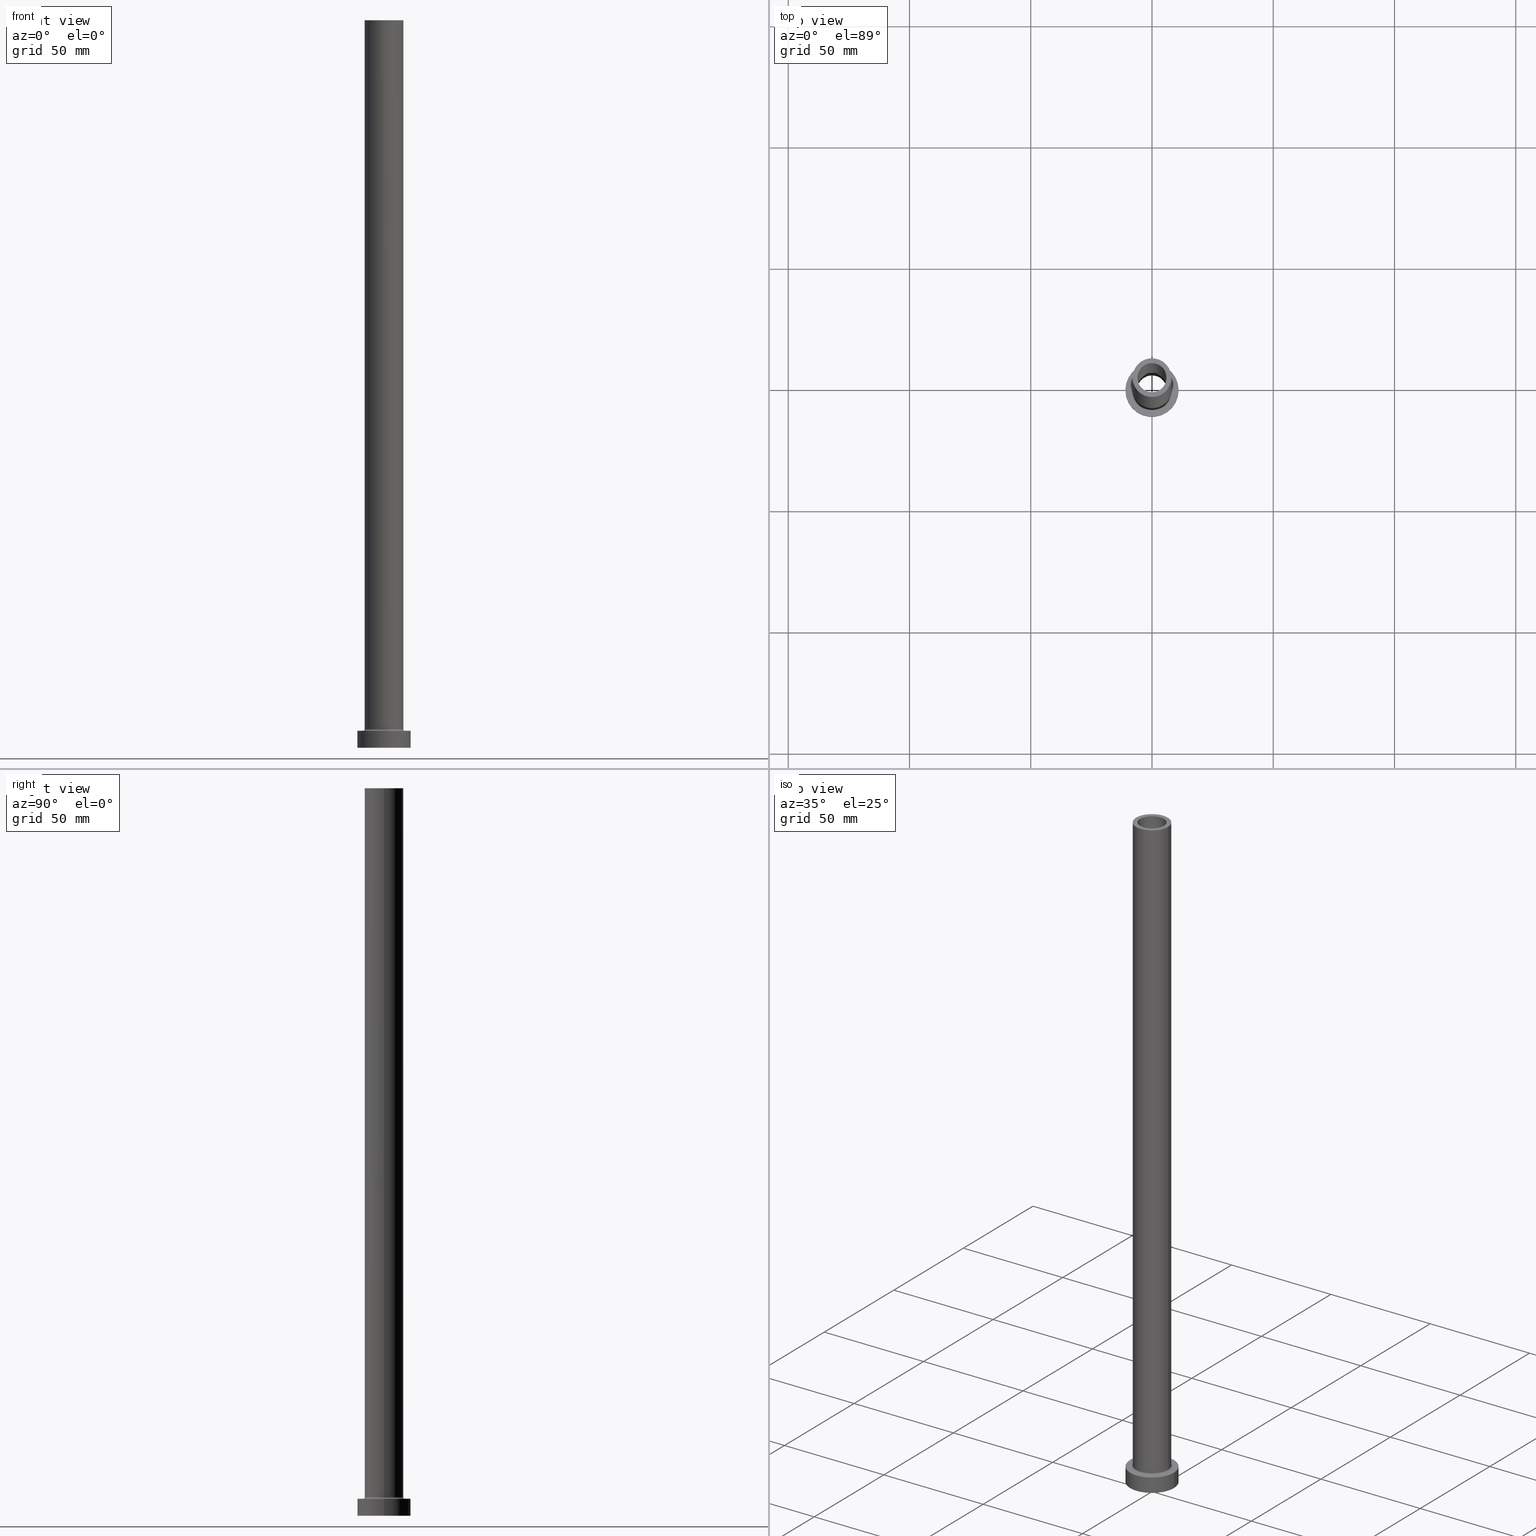
[diagram: canonical four-view strip — front | top / right | iso, engineering-drawing reading convention]
A machine part, canonical four-view strip (front | top / right | iso — engineering-drawing reading convention). The complete STEP part file that produces these views, byte-faithful:
ISO-10303-21;
HEADER;
FILE_DESCRIPTION (( 'STEP AP203' ),
    '1' );
FILE_NAME ('0f9c.STEP',
    '2023-02-13T09:06:59',
    ( '' ),
    ( '' ),
    'SwSTEP 2.0',
    'SolidWorks 2019',
    '' );
FILE_SCHEMA (( 'CONFIG_CONTROL_DESIGN' ));
ENDSEC;

DATA;
#1 = LOCAL_TIME ( 10, 6, 59.00000000000000000, #58 ) ;
#2 = ORIENTED_EDGE ( 'NONE', *, *, #116, .T. ) ;
#3 = ORIENTED_EDGE ( 'NONE', *, *, #28, .F. ) ;
#4 = DIRECTION ( 'NONE',  ( -0.000000000000000000, -0.000000000000000000, -1.000000000000000000 ) ) ;
#5 = DIRECTION ( 'NONE',  ( 0.000000000000000000, 0.000000000000000000, -1.000000000000000000 ) ) ;
#6 = CIRCLE ( 'NONE', #287, 0.6999999999999992895 ) ;
#7 = ORIENTED_EDGE ( 'NONE', *, *, #428, .T. ) ;
#8 = EDGE_CURVE ( 'NONE', #51, #122, #99, .T. ) ;
#9 = CARTESIAN_POINT ( 'NONE',  ( 0.000000000000000000, 0.000000000000000000, 300.0000000000000000 ) ) ;
#10 = DIRECTION ( 'NONE',  ( 0.000000000000000000, 0.000000000000000000, 1.000000000000000000 ) ) ;
#11 = DIRECTION ( 'NONE',  ( 0.000000000000000000, 0.000000000000000000, -1.000000000000000000 ) ) ;
#12 = CARTESIAN_POINT ( 'NONE',  ( 0.000000000000000000, 0.000000000000000000, 7.000000000000000000 ) ) ;
#13 = DIRECTION ( 'NONE',  ( 0.000000000000000000, 0.000000000000000000, 1.000000000000000000 ) ) ;
#14 = DIRECTION ( 'NONE',  ( -1.000000000000000000, 0.000000000000000000, 0.000000000000000000 ) ) ;
#15 = EDGE_CURVE ( 'NONE', #236, #398, #19, .T. ) ;
#16 = DIRECTION ( 'NONE',  ( 0.000000000000000000, 0.000000000000000000, 1.000000000000000000 ) ) ;
#17 = EDGE_LOOP ( 'NONE', ( #172, #127 ) ) ;
#18 = DATE_AND_TIME ( #376, #61 ) ;
#19 = CIRCLE ( 'NONE', #298, 8.699999999999999289 ) ;
#20 = EDGE_LOOP ( 'NONE', ( #377, #49 ) ) ;
#21 = MECHANICAL_CONTEXT ( 'NONE', #264, 'mechanical' ) ;
#22 = ORIENTED_EDGE ( 'NONE', *, *, #8, .T. ) ;
#23 = COORDINATED_UNIVERSAL_TIME_OFFSET ( 1, 0, .AHEAD. ) ;
#24 = PERSON_AND_ORGANIZATION_ROLE ( 'classification_officer' ) ;
#25 = PERSON ( 'NEUR�EN�', 'NEUR�EN�', 'NEUR�EN�', ('NEUR�EN�'), ('NEUR�EN�'), ('NEUR�EN�') ) ;
#26 = LINE ( 'NONE', #237, #338 ) ;
#27 = EDGE_CURVE ( 'NONE', #59, #57, #341, .T. ) ;
#28 = EDGE_CURVE ( 'NONE', #284, #51, #26, .T. ) ;
#29 = DIRECTION ( 'NONE',  ( 0.000000000000000000, 0.000000000000000000, 1.000000000000000000 ) ) ;
#30 = ADVANCED_FACE ( 'NONE', ( #345 ), #221, .T. ) ;
#31 = CARTESIAN_POINT ( 'NONE',  ( 0.000000000000000000, 0.000000000000000000, 0.000000000000000000 ) ) ;
#32 = ORIENTED_EDGE ( 'NONE', *, *, #168, .T. ) ;
#33 = CIRCLE ( 'NONE', #94, 6.000000000000000888 ) ;
#34 = DIRECTION ( 'NONE',  ( 1.000000000000000000, 0.000000000000000000, 0.000000000000000000 ) ) ;
#35 = PLANE ( 'NONE',  #189 ) ;
#36 = DIRECTION ( 'NONE',  ( 1.000000000000000000, 0.000000000000000000, 0.000000000000000000 ) ) ;
#37 = CARTESIAN_POINT ( 'NONE',  ( 0.000000000000000000, 0.000000000000000000, 7.699999999999985079 ) ) ;
#38 = DIRECTION ( 'NONE',  ( -0.000000000000000000, -0.000000000000000000, -1.000000000000000000 ) ) ;
#39 = AXIS2_PLACEMENT_3D ( 'NONE', #363, #393, #397 ) ;
#40 = CARTESIAN_POINT ( 'NONE',  ( 6.150000000000000355, 7.531577814756222064E-16, 255.0000000000000000 ) ) ;
#41 = DIRECTION ( 'NONE',  ( 1.000000000000000000, 0.000000000000000000, 0.000000000000000000 ) ) ;
#42 = CYLINDRICAL_SURFACE ( 'NONE', #433, 6.000000000000000888 ) ;
#43 = CYLINDRICAL_SURFACE ( 'NONE', #318, 6.150000000000000355 ) ;
#44 = DIRECTION ( 'NONE',  ( 1.000000000000000000, 0.000000000000000000, -0.000000000000000000 ) ) ;
#45 = SECURITY_CLASSIFICATION_LEVEL ( 'unclassified' ) ;
#46 = CALENDAR_DATE ( 2023, 13, 2 ) ;
#47 = EDGE_LOOP ( 'NONE', ( #231, #32, #410, #3 ) ) ;
#48 = ADVANCED_FACE ( 'NONE', ( #296, #267 ), #374, .F. ) ;
#49 = ORIENTED_EDGE ( 'NONE', *, *, #160, .T. ) ;
#50 =( LENGTH_UNIT ( ) NAMED_UNIT ( * ) SI_UNIT ( .MILLI., .METRE. ) );
#51 = VERTEX_POINT ( 'NONE', #149 ) ;
#52 = EDGE_CURVE ( 'NONE', #57, #455, #402, .T. ) ;
#53 = ORIENTED_EDGE ( 'NONE', *, *, #324, .F. ) ;
#54 = PERSON_AND_ORGANIZATION ( #25, #95 ) ;
#55 = ORIENTED_EDGE ( 'NONE', *, *, #246, .F. ) ;
#56 = ORIENTED_EDGE ( 'NONE', *, *, #324, .T. ) ;
#57 = VERTEX_POINT ( 'NONE', #113 ) ;
#58 = COORDINATED_UNIVERSAL_TIME_OFFSET ( 1, 0, .AHEAD. ) ;
#59 = VERTEX_POINT ( 'NONE', #369 ) ;
#60 = CARTESIAN_POINT ( 'NONE',  ( 11.00000000000000000, 1.347111479062088405E-15, 0.000000000000000000 ) ) ;
#61 = LOCAL_TIME ( 10, 6, 59.00000000000000000, #417 ) ;
#62 = ORIENTED_EDGE ( 'NONE', *, *, #285, .F. ) ;
#63 = DIRECTION ( 'NONE',  ( 0.000000000000000000, 0.000000000000000000, -1.000000000000000000 ) ) ;
#64 = CC_DESIGN_DATE_AND_TIME_ASSIGNMENT ( #431, #390, ( #199 ) ) ;
#65 = APPROVAL_STATUS ( 'not_yet_approved' ) ;
#66 = APPROVAL_DATE_TIME ( #288, #459 ) ;
#67 = ADVANCED_BREP_SHAPE_REPRESENTATION ( '0f9c', ( #88, #79 ), #173 ) ;
#68 = CIRCLE ( 'NONE', #396, 6.150000000000000355 ) ;
#69 = AXIS2_PLACEMENT_3D ( 'NONE', #394, #10, #143 ) ;
#70 = CARTESIAN_POINT ( 'NONE',  ( 0.000000000000000000, 0.000000000000000000, 7.699999999999985079 ) ) ;
#71 = ORIENTED_EDGE ( 'NONE', *, *, #28, .T. ) ;
#72 = CARTESIAN_POINT ( 'NONE',  ( -8.699999999999999289, 1.065442715258197248E-15, 6.999999999999992006 ) ) ;
#73 = FACE_OUTER_BOUND ( 'NONE', #368, .T. ) ;
#74 = DIRECTION ( 'NONE',  ( 0.000000000000000000, 0.000000000000000000, 1.000000000000000000 ) ) ;
#75 = VECTOR ( 'NONE', #129, 1000.000000000000000 ) ;
#76 = UNCERTAINTY_MEASURE_WITH_UNIT (LENGTH_MEASURE( 1.000000000000000082E-05 ), #50, 'distance_accuracy_value', 'NONE');
#77 = CYLINDRICAL_SURFACE ( 'NONE', #293, 6.000000000000000888 ) ;
#78 = CIRCLE ( 'NONE', #366, 8.000000000000000000 ) ;
#79 = AXIS2_PLACEMENT_3D ( 'NONE', #381, #16, #273 ) ;
#80 = CC_DESIGN_DATE_AND_TIME_ASSIGNMENT ( #313, #128, ( #283 ) ) ;
#81 = FACE_OUTER_BOUND ( 'NONE', #438, .T. ) ;
#82 = DIRECTION ( 'NONE',  ( 1.000000000000000000, 0.000000000000000000, 0.000000000000000000 ) ) ;
#83 = PERSON_AND_ORGANIZATION_ROLE ( 'design_owner' ) ;
#84 = PERSON_AND_ORGANIZATION ( #25, #95 ) ;
#85 = CIRCLE ( 'NONE', #103, 6.150000000000000355 ) ;
#86 = ORIENTED_EDGE ( 'NONE', *, *, #163, .T. ) ;
#87 = PERSON_AND_ORGANIZATION ( #25, #95 ) ;
#88 = MANIFOLD_SOLID_BREP ( 'Odebrat vysunut�m4', #269 ) ;
#89 = EDGE_LOOP ( 'NONE', ( #195, #210 ) ) ;
#90 = DIRECTION ( 'NONE',  ( 0.000000000000000000, 0.000000000000000000, 1.000000000000000000 ) ) ;
#91 = ORIENTED_EDGE ( 'NONE', *, *, #282, .T. ) ;
#92 = PERSON_AND_ORGANIZATION_ROLE ( 'design_supplier' ) ;
#93 = ORIENTED_EDGE ( 'NONE', *, *, #253, .F. ) ;
#94 = AXIS2_PLACEMENT_3D ( 'NONE', #177, #176, #107 ) ;
#95 = ORGANIZATION ( 'NEUR�EN�', 'NEUR�EN�', '' ) ;
#96 = ORIENTED_EDGE ( 'NONE', *, *, #249, .F. ) ;
#97 = DIRECTION ( 'NONE',  ( 0.000000000000000000, 0.000000000000000000, 1.000000000000000000 ) ) ;
#98 = PLANE ( 'NONE',  #109 ) ;
#99 = CIRCLE ( 'NONE', #157, 11.00000000000000000 ) ;
#100 = CARTESIAN_POINT ( 'NONE',  ( 0.000000000000000000, 0.000000000000000000, 300.0000000000000000 ) ) ;
#101 = EDGE_LOOP ( 'NONE', ( #386, #93 ) ) ;
#102 = EDGE_CURVE ( 'NONE', #284, #380, #158, .T. ) ;
#103 = AXIS2_PLACEMENT_3D ( 'NONE', #31, #207, #254 ) ;
#104 = CARTESIAN_POINT ( 'NONE',  ( 0.000000000000000000, 0.000000000000000000, 0.000000000000000000 ) ) ;
#105 = APPROVAL ( #198, 'NEUR�EN�' ) ;
#106 = LINE ( 'NONE', #315, #114 ) ;
#107 = DIRECTION ( 'NONE',  ( 1.000000000000000000, 0.000000000000000000, 0.000000000000000000 ) ) ;
#108 = DIRECTION ( 'NONE',  ( 1.000000000000000000, 0.000000000000000000, 0.000000000000000000 ) ) ;
#109 = AXIS2_PLACEMENT_3D ( 'NONE', #247, #29, #354 ) ;
#110 = CC_DESIGN_APPROVAL ( #370, ( #283 ) ) ;
#111 = CC_DESIGN_PERSON_AND_ORGANIZATION_ASSIGNMENT ( #241, #24, ( #199 ) ) ;
#112 = DIRECTION ( 'NONE',  ( 0.000000000000000000, 0.000000000000000000, -1.000000000000000000 ) ) ;
#113 = CARTESIAN_POINT ( 'NONE',  ( 6.000000000000000888, 7.347880794884119736E-16, 255.0000000000000000 ) ) ;
#114 = VECTOR ( 'NONE', #63, 1000.000000000000000 ) ;
#115 = DIRECTION ( 'NONE',  ( 0.000000000000000000, 0.000000000000000000, -1.000000000000000000 ) ) ;
#116 = EDGE_CURVE ( 'NONE', #314, #148, #144, .T. ) ;
#117 = CARTESIAN_POINT ( 'NONE',  ( 0.000000000000000000, 0.000000000000000000, 0.000000000000000000 ) ) ;
#118 = CARTESIAN_POINT ( 'NONE',  ( 0.000000000000000000, 0.000000000000000000, 7.000000000000000000 ) ) ;
#119 = VECTOR ( 'NONE', #11, 1000.000000000000000 ) ;
#120 = DIRECTION ( 'NONE',  ( -1.000000000000000000, 1.224646799147353207E-16, 0.000000000000000000 ) ) ;
#121 = ORIENTED_EDGE ( 'NONE', *, *, #52, .F. ) ;
#122 = VERTEX_POINT ( 'NONE', #60 ) ;
#123 = CARTESIAN_POINT ( 'NONE',  ( -6.000000000000000888, 0.000000000000000000, 255.0000000000000000 ) ) ;
#124 = ADVANCED_FACE ( 'NONE', ( #319, #322 ), #258, .F. ) ;
#125 = PRODUCT_DEFINITION_FORMATION_WITH_SPECIFIED_SOURCE ( 'LIBOVOLN�', '', #349, .NOT_KNOWN. ) ;
#126 = EDGE_LOOP ( 'NONE', ( #412, #356 ) ) ;
#127 = ORIENTED_EDGE ( 'NONE', *, *, #116, .F. ) ;
#128 = DATE_TIME_ROLE ( 'creation_date' ) ;
#129 = DIRECTION ( 'NONE',  ( 0.000000000000000000, 0.000000000000000000, -1.000000000000000000 ) ) ;
#130 = ORIENTED_EDGE ( 'NONE', *, *, #163, .F. ) ;
#131 = PERSON_AND_ORGANIZATION ( #25, #95 ) ;
#132 = APPROVAL_ROLE ( '' ) ;
#133 = DIRECTION ( 'NONE',  ( -1.000000000000000000, 0.000000000000000000, 0.000000000000000000 ) ) ;
#134 = CIRCLE ( 'NONE', #69, 8.000000000000000000 ) ;
#135 = CIRCLE ( 'NONE', #312, 6.000000000000000888 ) ;
#136 = VERTEX_POINT ( 'NONE', #250 ) ;
#137 = ORIENTED_EDGE ( 'NONE', *, *, #185, .T. ) ;
#138 = EDGE_CURVE ( 'NONE', #245, #455, #106, .T. ) ;
#139 = AXIS2_PLACEMENT_3D ( 'NONE', #289, #229, #41 ) ;
#140 = APPROVAL_PERSON_ORGANIZATION ( #337, #370, #421 ) ;
#141 = DIRECTION ( 'NONE',  ( 0.000000000000000000, 0.000000000000000000, 1.000000000000000000 ) ) ;
#142 = ORIENTED_EDGE ( 'NONE', *, *, #102, .F. ) ;
#143 = DIRECTION ( 'NONE',  ( 1.000000000000000000, 0.000000000000000000, 0.000000000000000000 ) ) ;
#144 = CIRCLE ( 'NONE', #454, 6.150000000000000355 ) ;
#145 = CARTESIAN_POINT ( 'NONE',  ( -11.00000000000000000, 0.000000000000000000, 7.000000000000000000 ) ) ;
#146 = CIRCLE ( 'NONE', #415, 8.699999999999999289 ) ;
#147 = CARTESIAN_POINT ( 'NONE',  ( 8.000000000000000000, 9.797174393178825657E-16, 300.0000000000000000 ) ) ;
#148 = VERTEX_POINT ( 'NONE', #171 ) ;
#149 = CARTESIAN_POINT ( 'NONE',  ( -11.00000000000000000, 0.000000000000000000, 0.000000000000000000 ) ) ;
#150 = LINE ( 'NONE', #444, #440 ) ;
#151 = CARTESIAN_POINT ( 'NONE',  ( -6.000000000000000888, 0.000000000000000000, 300.0000000000000000 ) ) ;
#152 = CARTESIAN_POINT ( 'NONE',  ( 0.000000000000000000, 0.000000000000000000, 255.0000000000000000 ) ) ;
#153 = FACE_OUTER_BOUND ( 'NONE', #425, .T. ) ;
#154 = CARTESIAN_POINT ( 'NONE',  ( 0.000000000000000000, 0.000000000000000000, 7.000000000000000000 ) ) ;
#155 = DIRECTION ( 'NONE',  ( -1.000000000000000000, 0.000000000000000000, 0.000000000000000000 ) ) ;
#156 = APPROVAL_DATE_TIME ( #18, #370 ) ;
#157 = AXIS2_PLACEMENT_3D ( 'NONE', #420, #90, #224 ) ;
#158 = CIRCLE ( 'NONE', #432, 11.00000000000000000 ) ;
#159 = APPLICATION_PROTOCOL_DEFINITION ( 'international standard', 'config_control_design', 1994, #323 ) ;
#160 = EDGE_CURVE ( 'NONE', #380, #284, #170, .T. ) ;
#161 = EDGE_LOOP ( 'NONE', ( #62, #346, #56, #403 ) ) ;
#162 = DATE_AND_TIME ( #46, #387 ) ;
#163 = EDGE_CURVE ( 'NONE', #234, #398, #280, .T. ) ;
#164 = ADVANCED_FACE ( 'NONE', ( #257, #213 ), #98, .T. ) ;
#165 = ORIENTED_EDGE ( 'NONE', *, *, #27, .T. ) ;
#166 = CALENDAR_DATE ( 2023, 13, 2 ) ;
#167 = CIRCLE ( 'NONE', #384, 6.000000000000000888 ) ;
#168 = EDGE_CURVE ( 'NONE', #380, #122, #169, .T. ) ;
#169 = LINE ( 'NONE', #434, #305 ) ;
#170 = CIRCLE ( 'NONE', #379, 11.00000000000000000 ) ;
#171 = CARTESIAN_POINT ( 'NONE',  ( -6.150000000000000355, 0.000000000000000000, 0.000000000000000000 ) ) ;
#172 = ORIENTED_EDGE ( 'NONE', *, *, #185, .F. ) ;
#173 =( GEOMETRIC_REPRESENTATION_CONTEXT ( 3 ) GLOBAL_UNCERTAINTY_ASSIGNED_CONTEXT ( ( #76 ) ) GLOBAL_UNIT_ASSIGNED_CONTEXT ( ( #50, #453, #378 ) ) REPRESENTATION_CONTEXT ( 'NONE', 'WORKASPACE' ) );
#174 = PRODUCT_RELATED_PRODUCT_CATEGORY ( 'detail', '', ( #349 ) ) ;
#175 = DIRECTION ( 'NONE',  ( 0.000000000000000000, 0.000000000000000000, 1.000000000000000000 ) ) ;
#176 = DIRECTION ( 'NONE',  ( 0.000000000000000000, 0.000000000000000000, 1.000000000000000000 ) ) ;
#177 = CARTESIAN_POINT ( 'NONE',  ( 0.000000000000000000, 0.000000000000000000, 300.0000000000000000 ) ) ;
#178 = AXIS2_PLACEMENT_3D ( 'NONE', #227, #449, #262 ) ;
#179 = CARTESIAN_POINT ( 'NONE',  ( 0.000000000000000000, 0.000000000000000000, 300.0000000000000000 ) ) ;
#180 = CARTESIAN_POINT ( 'NONE',  ( 0.000000000000000000, 0.000000000000000000, 255.0000000000000000 ) ) ;
#181 = ADVANCED_FACE ( 'NONE', ( #153 ), #43, .F. ) ;
#182 = TOROIDAL_SURFACE ( 'NONE', #426, 8.699999999999999289, 0.6999999999999999556 ) ;
#183 = DIRECTION ( 'NONE',  ( -0.000000000000000000, -0.000000000000000000, -1.000000000000000000 ) ) ;
#184 = EDGE_CURVE ( 'NONE', #350, #442, #310, .T. ) ;
#185 = EDGE_CURVE ( 'NONE', #148, #314, #85, .T. ) ;
#186 = DIRECTION ( 'NONE',  ( 1.000000000000000000, 0.000000000000000000, 0.000000000000000000 ) ) ;
#187 = DIRECTION ( 'NONE',  ( 1.000000000000000000, 0.000000000000000000, 0.000000000000000000 ) ) ;
#188 = CYLINDRICAL_SURFACE ( 'NONE', #334, 8.000000000000000000 ) ;
#189 = AXIS2_PLACEMENT_3D ( 'NONE', #118, #13, #291 ) ;
#190 = PERSON_AND_ORGANIZATION ( #25, #95 ) ;
#191 = APPROVAL_PERSON_ORGANIZATION ( #203, #459, #132 ) ;
#192 = EDGE_CURVE ( 'NONE', #442, #350, #78, .T. ) ;
#193 = CC_DESIGN_PERSON_AND_ORGANIZATION_ASSIGNMENT ( #131, #92, ( #125 ) ) ;
#194 = DIRECTION ( 'NONE',  ( 1.224646799147353207E-16, 1.000000000000000000, -0.000000000000000000 ) ) ;
#195 = ORIENTED_EDGE ( 'NONE', *, *, #192, .T. ) ;
#196 = CYLINDRICAL_SURFACE ( 'NONE', #204, 6.150000000000000355 ) ;
#197 = ORIENTED_EDGE ( 'NONE', *, *, #246, .T. ) ;
#198 = APPROVAL_STATUS ( 'not_yet_approved' ) ;
#199 = SECURITY_CLASSIFICATION ( '', '', #45 ) ;
#200 = ORIENTED_EDGE ( 'NONE', *, *, #285, .T. ) ;
#201 = APPLICATION_PROTOCOL_DEFINITION ( 'international standard', 'config_control_design', 1994, #264 ) ;
#202 = DIRECTION ( 'NONE',  ( 0.000000000000000000, 0.000000000000000000, -1.000000000000000000 ) ) ;
#203 = PERSON_AND_ORGANIZATION ( #25, #95 ) ;
#204 = AXIS2_PLACEMENT_3D ( 'NONE', #423, #232, #275 ) ;
#205 = DESIGN_CONTEXT ( 'detailed design', #323, 'design' ) ;
#206 = EDGE_LOOP ( 'NONE', ( #91, #165, #251, #451 ) ) ;
#207 = DIRECTION ( 'NONE',  ( -0.000000000000000000, -0.000000000000000000, -1.000000000000000000 ) ) ;
#208 = DIRECTION ( 'NONE',  ( 1.000000000000000000, 0.000000000000000000, 0.000000000000000000 ) ) ;
#209 = EDGE_CURVE ( 'NONE', #136, #430, #343, .T. ) ;
#210 = ORIENTED_EDGE ( 'NONE', *, *, #184, .T. ) ;
#211 = FACE_OUTER_BOUND ( 'NONE', #206, .T. ) ;
#212 = FACE_BOUND ( 'NONE', #233, .T. ) ;
#213 = FACE_OUTER_BOUND ( 'NONE', #89, .T. ) ;
#214 = CARTESIAN_POINT ( 'NONE',  ( 0.000000000000000000, 0.000000000000000000, 300.0000000000000000 ) ) ;
#215 = CARTESIAN_POINT ( 'NONE',  ( 0.000000000000000000, 0.000000000000000000, 300.0000000000000000 ) ) ;
#216 = PRODUCT_DEFINITION_SHAPE ( 'NONE', 'NONE',  #283 ) ;
#217 = DIRECTION ( 'NONE',  ( 1.000000000000000000, 0.000000000000000000, 0.000000000000000000 ) ) ;
#218 = CYLINDRICAL_SURFACE ( 'NONE', #242, 11.00000000000000000 ) ;
#219 = DIRECTION ( 'NONE',  ( 1.000000000000000000, 0.000000000000000000, 0.000000000000000000 ) ) ;
#220 = LINE ( 'NONE', #295, #119 ) ;
#221 = CYLINDRICAL_SURFACE ( 'NONE', #178, 11.00000000000000000 ) ;
#222 = LOCAL_TIME ( 10, 6, 59.00000000000000000, #23 ) ;
#223 = DIRECTION ( 'NONE',  ( 1.000000000000000000, 0.000000000000000000, 0.000000000000000000 ) ) ;
#224 = DIRECTION ( 'NONE',  ( 1.000000000000000000, 0.000000000000000000, 0.000000000000000000 ) ) ;
#225 = ORIENTED_EDGE ( 'NONE', *, *, #422, .T. ) ;
#226 = DIRECTION ( 'NONE',  ( 0.000000000000000000, 0.000000000000000000, 1.000000000000000000 ) ) ;
#227 = CARTESIAN_POINT ( 'NONE',  ( 0.000000000000000000, 0.000000000000000000, 7.000000000000000000 ) ) ;
#228 = APPROVAL_ROLE ( '' ) ;
#229 = DIRECTION ( 'NONE',  ( 0.000000000000000000, 0.000000000000000000, 1.000000000000000000 ) ) ;
#230 = AXIS2_PLACEMENT_3D ( 'NONE', #441, #38, #400 ) ;
#231 = ORIENTED_EDGE ( 'NONE', *, *, #160, .F. ) ;
#232 = DIRECTION ( 'NONE',  ( 0.000000000000000000, 0.000000000000000000, -1.000000000000000000 ) ) ;
#233 = EDGE_LOOP ( 'NONE', ( #7, #339 ) ) ;
#234 = VERTEX_POINT ( 'NONE', #307 ) ;
#235 = ADVANCED_FACE ( 'NONE', ( #332 ), #218, .T. ) ;
#236 = VERTEX_POINT ( 'NONE', #72 ) ;
#237 = CARTESIAN_POINT ( 'NONE',  ( -11.00000000000000000, 0.000000000000000000, 7.000000000000000000 ) ) ;
#238 = ORIENTED_EDGE ( 'NONE', *, *, #422, .F. ) ;
#239 = EDGE_CURVE ( 'NONE', #430, #314, #220, .T. ) ;
#240 = ORIENTED_EDGE ( 'NONE', *, *, #239, .T. ) ;
#241 = PERSON_AND_ORGANIZATION ( #25, #95 ) ;
#242 = AXIS2_PLACEMENT_3D ( 'NONE', #266, #304, #399 ) ;
#243 = AXIS2_PLACEMENT_3D ( 'NONE', #70, #226, #219 ) ;
#244 = EDGE_LOOP ( 'NONE', ( #278, #142, #71, #22 ) ) ;
#245 = VERTEX_POINT ( 'NONE', #151 ) ;
#246 = EDGE_CURVE ( 'NONE', #59, #245, #33, .T. ) ;
#247 = CARTESIAN_POINT ( 'NONE',  ( 0.000000000000000000, 0.000000000000000000, 300.0000000000000000 ) ) ;
#248 = LOCAL_TIME ( 10, 6, 59.00000000000000000, #450 ) ;
#249 = EDGE_CURVE ( 'NONE', #306, #234, #134, .T. ) ;
#250 = CARTESIAN_POINT ( 'NONE',  ( -6.150000000000000355, 0.000000000000000000, 255.0000000000000000 ) ) ;
#251 = ORIENTED_EDGE ( 'NONE', *, *, #303, .F. ) ;
#252 = EDGE_CURVE ( 'NONE', #122, #51, #357, .T. ) ;
#253 = EDGE_CURVE ( 'NONE', #430, #136, #68, .T. ) ;
#254 = DIRECTION ( 'NONE',  ( 1.000000000000000000, 0.000000000000000000, 0.000000000000000000 ) ) ;
#255 = ORIENTED_EDGE ( 'NONE', *, *, #239, .F. ) ;
#256 = FACE_OUTER_BOUND ( 'NONE', #419, .T. ) ;
#257 = FACE_BOUND ( 'NONE', #361, .T. ) ;
#258 = PLANE ( 'NONE',  #340 ) ;
#259 = FACE_OUTER_BOUND ( 'NONE', #435, .T. ) ;
#260 = DIRECTION ( 'NONE',  ( 0.000000000000000000, 0.000000000000000000, 1.000000000000000000 ) ) ;
#261 = ADVANCED_FACE ( 'NONE', ( #212, #317 ), #35, .T. ) ;
#262 = DIRECTION ( 'NONE',  ( -1.000000000000000000, 0.000000000000000000, 0.000000000000000000 ) ) ;
#263 = DIRECTION ( 'NONE',  ( -0.000000000000000000, -0.000000000000000000, -1.000000000000000000 ) ) ;
#264 = APPLICATION_CONTEXT ( 'configuration controlled 3d designs of mechanical parts and assemblies' ) ;
#265 = CARTESIAN_POINT ( 'NONE',  ( -8.000000000000000000, 0.000000000000000000, 7.699999999999985079 ) ) ;
#266 = CARTESIAN_POINT ( 'NONE',  ( 0.000000000000000000, 0.000000000000000000, 7.000000000000000000 ) ) ;
#267 = FACE_OUTER_BOUND ( 'NONE', #101, .T. ) ;
#268 = CC_DESIGN_PERSON_AND_ORGANIZATION_ASSIGNMENT ( #54, #83, ( #349 ) ) ;
#269 = CLOSED_SHELL ( 'NONE', ( #348, #181, #388, #355, #30, #235, #261, #124, #336, #164, #362, #445, #48, #328 ) ) ;
#270 = PERSON_AND_ORGANIZATION_ROLE ( 'creator' ) ;
#271 = CIRCLE ( 'NONE', #375, 8.000000000000000000 ) ;
#272 = EDGE_CURVE ( 'NONE', #234, #306, #271, .T. ) ;
#273 = DIRECTION ( 'NONE',  ( 1.000000000000000000, 0.000000000000000000, 0.000000000000000000 ) ) ;
#274 = CC_DESIGN_PERSON_AND_ORGANIZATION_ASSIGNMENT ( #190, #270, ( #283 ) ) ;
#275 = DIRECTION ( 'NONE',  ( -1.000000000000000000, 0.000000000000000000, 0.000000000000000000 ) ) ;
#276 = AXIS2_PLACEMENT_3D ( 'NONE', #180, #330, #44 ) ;
#277 = CARTESIAN_POINT ( 'NONE',  ( 0.000000000000000000, 0.000000000000000000, 272.3948268171890845 ) ) ;
#278 = ORIENTED_EDGE ( 'NONE', *, *, #168, .F. ) ;
#279 = AXIS2_PLACEMENT_3D ( 'NONE', #429, #97, #82 ) ;
#280 = CIRCLE ( 'NONE', #39, 0.7000000000000000666 ) ;
#281 = ORIENTED_EDGE ( 'NONE', *, *, #253, .T. ) ;
#282 = EDGE_CURVE ( 'NONE', #245, #59, #135, .T. ) ;
#283 = PRODUCT_DEFINITION ( 'NEZN�M�', '', #125, #205 ) ;
#284 = VERTEX_POINT ( 'NONE', #145 ) ;
#285 = EDGE_CURVE ( 'NONE', #350, #234, #320, .T. ) ;
#286 = DIRECTION ( 'NONE',  ( 1.000000000000000000, 0.000000000000000000, 0.000000000000000000 ) ) ;
#287 = AXIS2_PLACEMENT_3D ( 'NONE', #311, #194, #120 ) ;
#288 = DATE_AND_TIME ( #166, #1 ) ;
#289 = CARTESIAN_POINT ( 'NONE',  ( 0.000000000000000000, 0.000000000000000000, 255.0000000000000000 ) ) ;
#290 = AXIS2_PLACEMENT_3D ( 'NONE', #443, #74, #217 ) ;
#291 = DIRECTION ( 'NONE',  ( 1.000000000000000000, 0.000000000000000000, -0.000000000000000000 ) ) ;
#292 = AXIS2_PLACEMENT_3D ( 'NONE', #215, #302, #34 ) ;
#293 = AXIS2_PLACEMENT_3D ( 'NONE', #214, #112, #360 ) ;
#294 = CYLINDRICAL_SURFACE ( 'NONE', #230, 8.000000000000000000 ) ;
#295 = CARTESIAN_POINT ( 'NONE',  ( 6.150000000000000355, 7.531577814756222064E-16, 272.3948268171890845 ) ) ;
#296 = FACE_BOUND ( 'NONE', #126, .T. ) ;
#297 = CARTESIAN_POINT ( 'NONE',  ( 8.000000000000000000, 9.797174393178825657E-16, 300.0000000000000000 ) ) ;
#298 = AXIS2_PLACEMENT_3D ( 'NONE', #154, #427, #418 ) ;
#299 = ORIENTED_EDGE ( 'NONE', *, *, #15, .F. ) ;
#300 = DIRECTION ( 'NONE',  ( 0.000000000000000000, 0.000000000000000000, 1.000000000000000000 ) ) ;
#301 = FACE_OUTER_BOUND ( 'NONE', #416, .T. ) ;
#302 = DIRECTION ( 'NONE',  ( 0.000000000000000000, 0.000000000000000000, 1.000000000000000000 ) ) ;
#303 = EDGE_CURVE ( 'NONE', #455, #57, #167, .T. ) ;
#304 = DIRECTION ( 'NONE',  ( -0.000000000000000000, -0.000000000000000000, -1.000000000000000000 ) ) ;
#305 = VECTOR ( 'NONE', #335, 1000.000000000000000 ) ;
#306 = VERTEX_POINT ( 'NONE', #265 ) ;
#307 = CARTESIAN_POINT ( 'NONE',  ( 8.000000000000000000, 9.797174393178825657E-16, 7.699999999999985079 ) ) ;
#308 = ORIENTED_EDGE ( 'NONE', *, *, #27, .F. ) ;
#309 = APPROVAL_DATE_TIME ( #162, #105 ) ;
#310 = CIRCLE ( 'NONE', #292, 8.000000000000000000 ) ;
#311 = CARTESIAN_POINT ( 'NONE',  ( -8.699999999999999289, 1.065442715258197248E-15, 7.699999999999985079 ) ) ;
#312 = AXIS2_PLACEMENT_3D ( 'NONE', #179, #175, #108 ) ;
#313 = DATE_AND_TIME ( #347, #222 ) ;
#314 = VERTEX_POINT ( 'NONE', #372 ) ;
#315 = CARTESIAN_POINT ( 'NONE',  ( -6.000000000000000888, 0.000000000000000000, 300.0000000000000000 ) ) ;
#316 = ORIENTED_EDGE ( 'NONE', *, *, #252, .F. ) ;
#317 = FACE_OUTER_BOUND ( 'NONE', #20, .T. ) ;
#318 = AXIS2_PLACEMENT_3D ( 'NONE', #277, #202, #133 ) ;
#319 = FACE_BOUND ( 'NONE', #17, .T. ) ;
#320 = LINE ( 'NONE', #147, #344 ) ;
#321 = EDGE_LOOP ( 'NONE', ( #414, #316 ) ) ;
#322 = FACE_OUTER_BOUND ( 'NONE', #321, .T. ) ;
#323 = APPLICATION_CONTEXT ( 'configuration controlled 3d designs of mechanical parts and assemblies' ) ;
#324 = EDGE_CURVE ( 'NONE', #442, #306, #439, .T. ) ;
#325 = DIRECTION ( 'NONE',  ( -0.000000000000000000, -0.000000000000000000, -1.000000000000000000 ) ) ;
#326 = VECTOR ( 'NONE', #4, 1000.000000000000000 ) ;
#327 = DIRECTION ( 'NONE',  ( 1.000000000000000000, 0.000000000000000000, 0.000000000000000000 ) ) ;
#328 = ADVANCED_FACE ( 'NONE', ( #301 ), #42, .F. ) ;
#329 = ORIENTED_EDGE ( 'NONE', *, *, #272, .F. ) ;
#330 = DIRECTION ( 'NONE',  ( 0.000000000000000000, 0.000000000000000000, 1.000000000000000000 ) ) ;
#331 = CARTESIAN_POINT ( 'NONE',  ( 0.000000000000000000, 0.000000000000000000, 7.000000000000000000 ) ) ;
#332 = FACE_OUTER_BOUND ( 'NONE', #244, .T. ) ;
#333 = CARTESIAN_POINT ( 'NONE',  ( 0.000000000000000000, 0.000000000000000000, 7.699999999999985079 ) ) ;
#334 = AXIS2_PLACEMENT_3D ( 'NONE', #408, #183, #155 ) ;
#335 = DIRECTION ( 'NONE',  ( -0.000000000000000000, -0.000000000000000000, -1.000000000000000000 ) ) ;
#336 = ADVANCED_FACE ( 'NONE', ( #404 ), #188, .T. ) ;
#337 = PERSON_AND_ORGANIZATION ( #25, #95 ) ;
#338 = VECTOR ( 'NONE', #382, 1000.000000000000000 ) ;
#339 = ORIENTED_EDGE ( 'NONE', *, *, #15, .T. ) ;
#340 = AXIS2_PLACEMENT_3D ( 'NONE', #104, #353, #436 ) ;
#341 = LINE ( 'NONE', #460, #75 ) ;
#342 = ORIENTED_EDGE ( 'NONE', *, *, #452, .T. ) ;
#343 = CIRCLE ( 'NONE', #139, 6.150000000000000355 ) ;
#344 = VECTOR ( 'NONE', #325, 1000.000000000000000 ) ;
#345 = FACE_OUTER_BOUND ( 'NONE', #47, .T. ) ;
#346 = ORIENTED_EDGE ( 'NONE', *, *, #192, .F. ) ;
#347 = CALENDAR_DATE ( 2023, 13, 2 ) ;
#348 = ADVANCED_FACE ( 'NONE', ( #211 ), #77, .F. ) ;
#349 = PRODUCT ( '0f9c', '0f9c', '', ( #21 ) ) ;
#350 = VERTEX_POINT ( 'NONE', #297 ) ;
#351 = SHAPE_DEFINITION_REPRESENTATION ( #216, #67 ) ;
#352 = TOROIDAL_SURFACE ( 'NONE', #243, 8.699999999999999289, 0.6999999999999999556 ) ;
#353 = DIRECTION ( 'NONE',  ( 0.000000000000000000, 0.000000000000000000, 1.000000000000000000 ) ) ;
#354 = DIRECTION ( 'NONE',  ( 1.000000000000000000, 0.000000000000000000, -0.000000000000000000 ) ) ;
#355 = ADVANCED_FACE ( 'NONE', ( #259 ), #294, .T. ) ;
#356 = ORIENTED_EDGE ( 'NONE', *, *, #52, .T. ) ;
#357 = CIRCLE ( 'NONE', #279, 11.00000000000000000 ) ;
#358 = ORIENTED_EDGE ( 'NONE', *, *, #452, .F. ) ;
#359 = CC_DESIGN_SECURITY_CLASSIFICATION ( #199, ( #125 ) ) ;
#360 = DIRECTION ( 'NONE',  ( -1.000000000000000000, 0.000000000000000000, 0.000000000000000000 ) ) ;
#361 = EDGE_LOOP ( 'NONE', ( #392, #55 ) ) ;
#362 = ADVANCED_FACE ( 'NONE', ( #73 ), #182, .F. ) ;
#363 = CARTESIAN_POINT ( 'NONE',  ( 8.699999999999999289, 0.000000000000000000, 7.699999999999985079 ) ) ;
#364 = CARTESIAN_POINT ( 'NONE',  ( -8.000000000000000000, 0.000000000000000000, 300.0000000000000000 ) ) ;
#365 = CARTESIAN_POINT ( 'NONE',  ( 8.699999999999999289, 0.000000000000000000, 6.999999999999992006 ) ) ;
#366 = AXIS2_PLACEMENT_3D ( 'NONE', #100, #391, #208 ) ;
#367 = CC_DESIGN_APPROVAL ( #459, ( #199 ) ) ;
#368 = EDGE_LOOP ( 'NONE', ( #358, #329, #86, #299 ) ) ;
#369 = CARTESIAN_POINT ( 'NONE',  ( 6.000000000000000888, 7.347880794884119736E-16, 300.0000000000000000 ) ) ;
#370 = APPROVAL ( #458, 'NEUR�EN�' ) ;
#371 = DIRECTION ( 'NONE',  ( 1.000000000000000000, 0.000000000000000000, 0.000000000000000000 ) ) ;
#372 = CARTESIAN_POINT ( 'NONE',  ( 6.150000000000000355, 7.531577814756222064E-16, 0.000000000000000000 ) ) ;
#373 = CARTESIAN_POINT ( 'NONE',  ( 0.000000000000000000, 0.000000000000000000, 255.0000000000000000 ) ) ;
#374 = PLANE ( 'NONE',  #276 ) ;
#375 = AXIS2_PLACEMENT_3D ( 'NONE', #333, #401, #371 ) ;
#376 = CALENDAR_DATE ( 2023, 13, 2 ) ;
#377 = ORIENTED_EDGE ( 'NONE', *, *, #102, .T. ) ;
#378 =( NAMED_UNIT ( * ) SI_UNIT ( $, .STERADIAN. ) SOLID_ANGLE_UNIT ( ) );
#379 = AXIS2_PLACEMENT_3D ( 'NONE', #389, #141, #36 ) ;
#380 = VERTEX_POINT ( 'NONE', #437 ) ;
#381 = CARTESIAN_POINT ( 'NONE',  ( 0.000000000000000000, 0.000000000000000000, 0.000000000000000000 ) ) ;
#382 = DIRECTION ( 'NONE',  ( -0.000000000000000000, -0.000000000000000000, -1.000000000000000000 ) ) ;
#383 = ORIENTED_EDGE ( 'NONE', *, *, #138, .T. ) ;
#384 = AXIS2_PLACEMENT_3D ( 'NONE', #152, #395, #327 ) ;
#385 = DIRECTION ( 'NONE',  ( -0.000000000000000000, -0.000000000000000000, -1.000000000000000000 ) ) ;
#386 = ORIENTED_EDGE ( 'NONE', *, *, #209, .F. ) ;
#387 = LOCAL_TIME ( 10, 6, 59.00000000000000000, #413 ) ;
#388 = ADVANCED_FACE ( 'NONE', ( #256 ), #352, .F. ) ;
#389 = CARTESIAN_POINT ( 'NONE',  ( 0.000000000000000000, 0.000000000000000000, 7.000000000000000000 ) ) ;
#390 = DATE_TIME_ROLE ( 'classification_date' ) ;
#391 = DIRECTION ( 'NONE',  ( 0.000000000000000000, 0.000000000000000000, 1.000000000000000000 ) ) ;
#392 = ORIENTED_EDGE ( 'NONE', *, *, #282, .F. ) ;
#393 = DIRECTION ( 'NONE',  ( 0.000000000000000000, -1.000000000000000000, 0.000000000000000000 ) ) ;
#394 = CARTESIAN_POINT ( 'NONE',  ( 0.000000000000000000, 0.000000000000000000, 7.699999999999985079 ) ) ;
#395 = DIRECTION ( 'NONE',  ( 0.000000000000000000, 0.000000000000000000, 1.000000000000000000 ) ) ;
#396 = AXIS2_PLACEMENT_3D ( 'NONE', #373, #409, #187 ) ;
#397 = DIRECTION ( 'NONE',  ( 0.000000000000000000, 0.000000000000000000, -1.000000000000000000 ) ) ;
#398 = VERTEX_POINT ( 'NONE', #365 ) ;
#399 = DIRECTION ( 'NONE',  ( -1.000000000000000000, 0.000000000000000000, 0.000000000000000000 ) ) ;
#400 = DIRECTION ( 'NONE',  ( -1.000000000000000000, 0.000000000000000000, 0.000000000000000000 ) ) ;
#401 = DIRECTION ( 'NONE',  ( 0.000000000000000000, 0.000000000000000000, 1.000000000000000000 ) ) ;
#402 = CIRCLE ( 'NONE', #290, 6.000000000000000888 ) ;
#403 = ORIENTED_EDGE ( 'NONE', *, *, #249, .T. ) ;
#404 = FACE_OUTER_BOUND ( 'NONE', #161, .T. ) ;
#405 = ORIENTED_EDGE ( 'NONE', *, *, #209, .T. ) ;
#406 = APPROVAL_PERSON_ORGANIZATION ( #87, #105, #228 ) ;
#407 = CC_DESIGN_PERSON_AND_ORGANIZATION_ASSIGNMENT ( #84, #456, ( #125 ) ) ;
#408 = CARTESIAN_POINT ( 'NONE',  ( 0.000000000000000000, 0.000000000000000000, 300.0000000000000000 ) ) ;
#409 = DIRECTION ( 'NONE',  ( 0.000000000000000000, 0.000000000000000000, 1.000000000000000000 ) ) ;
#410 = ORIENTED_EDGE ( 'NONE', *, *, #252, .T. ) ;
#411 = CALENDAR_DATE ( 2023, 13, 2 ) ;
#412 = ORIENTED_EDGE ( 'NONE', *, *, #303, .T. ) ;
#413 = COORDINATED_UNIVERSAL_TIME_OFFSET ( 1, 0, .AHEAD. ) ;
#414 = ORIENTED_EDGE ( 'NONE', *, *, #8, .F. ) ;
#415 = AXIS2_PLACEMENT_3D ( 'NONE', #331, #263, #223 ) ;
#416 = EDGE_LOOP ( 'NONE', ( #308, #197, #383, #121 ) ) ;
#417 = COORDINATED_UNIVERSAL_TIME_OFFSET ( 1, 0, .AHEAD. ) ;
#418 = DIRECTION ( 'NONE',  ( 1.000000000000000000, 0.000000000000000000, 0.000000000000000000 ) ) ;
#419 = EDGE_LOOP ( 'NONE', ( #96, #342, #424, #130 ) ) ;
#420 = CARTESIAN_POINT ( 'NONE',  ( 0.000000000000000000, 0.000000000000000000, 0.000000000000000000 ) ) ;
#421 = APPROVAL_ROLE ( '' ) ;
#422 = EDGE_CURVE ( 'NONE', #136, #148, #150, .T. ) ;
#423 = CARTESIAN_POINT ( 'NONE',  ( 0.000000000000000000, 0.000000000000000000, 272.3948268171890845 ) ) ;
#424 = ORIENTED_EDGE ( 'NONE', *, *, #428, .F. ) ;
#425 = EDGE_LOOP ( 'NONE', ( #405, #240, #2, #238 ) ) ;
#426 = AXIS2_PLACEMENT_3D ( 'NONE', #37, #260, #186 ) ;
#427 = DIRECTION ( 'NONE',  ( -0.000000000000000000, -0.000000000000000000, -1.000000000000000000 ) ) ;
#428 = EDGE_CURVE ( 'NONE', #398, #236, #146, .T. ) ;
#429 = CARTESIAN_POINT ( 'NONE',  ( 0.000000000000000000, 0.000000000000000000, 0.000000000000000000 ) ) ;
#430 = VERTEX_POINT ( 'NONE', #40 ) ;
#431 = DATE_AND_TIME ( #411, #248 ) ;
#432 = AXIS2_PLACEMENT_3D ( 'NONE', #12, #300, #447 ) ;
#433 = AXIS2_PLACEMENT_3D ( 'NONE', #9, #5, #14 ) ;
#434 = CARTESIAN_POINT ( 'NONE',  ( 11.00000000000000000, 1.347111479062088405E-15, 7.000000000000000000 ) ) ;
#435 = EDGE_LOOP ( 'NONE', ( #461, #200, #446, #53 ) ) ;
#436 = DIRECTION ( 'NONE',  ( 1.000000000000000000, 0.000000000000000000, -0.000000000000000000 ) ) ;
#437 = CARTESIAN_POINT ( 'NONE',  ( 11.00000000000000000, 1.347111479062088405E-15, 7.000000000000000000 ) ) ;
#438 = EDGE_LOOP ( 'NONE', ( #255, #281, #225, #137 ) ) ;
#439 = LINE ( 'NONE', #364, #326 ) ;
#440 = VECTOR ( 'NONE', #115, 1000.000000000000000 ) ;
#441 = CARTESIAN_POINT ( 'NONE',  ( 0.000000000000000000, 0.000000000000000000, 300.0000000000000000 ) ) ;
#442 = VERTEX_POINT ( 'NONE', #448 ) ;
#443 = CARTESIAN_POINT ( 'NONE',  ( 0.000000000000000000, 0.000000000000000000, 255.0000000000000000 ) ) ;
#444 = CARTESIAN_POINT ( 'NONE',  ( -6.150000000000000355, 0.000000000000000000, 272.3948268171890845 ) ) ;
#445 = ADVANCED_FACE ( 'NONE', ( #81 ), #196, .F. ) ;
#446 = ORIENTED_EDGE ( 'NONE', *, *, #272, .T. ) ;
#447 = DIRECTION ( 'NONE',  ( 1.000000000000000000, 0.000000000000000000, 0.000000000000000000 ) ) ;
#448 = CARTESIAN_POINT ( 'NONE',  ( -8.000000000000000000, 0.000000000000000000, 300.0000000000000000 ) ) ;
#449 = DIRECTION ( 'NONE',  ( -0.000000000000000000, -0.000000000000000000, -1.000000000000000000 ) ) ;
#450 = COORDINATED_UNIVERSAL_TIME_OFFSET ( 1, 0, .AHEAD. ) ;
#451 = ORIENTED_EDGE ( 'NONE', *, *, #138, .F. ) ;
#452 = EDGE_CURVE ( 'NONE', #306, #236, #6, .T. ) ;
#453 =( NAMED_UNIT ( * ) PLANE_ANGLE_UNIT ( ) SI_UNIT ( $, .RADIAN. ) );
#454 = AXIS2_PLACEMENT_3D ( 'NONE', #117, #385, #286 ) ;
#455 = VERTEX_POINT ( 'NONE', #123 ) ;
#456 = PERSON_AND_ORGANIZATION_ROLE ( 'creator' ) ;
#457 = CC_DESIGN_APPROVAL ( #105, ( #125 ) ) ;
#458 = APPROVAL_STATUS ( 'not_yet_approved' ) ;
#459 = APPROVAL ( #65, 'NEUR�EN�' ) ;
#460 = CARTESIAN_POINT ( 'NONE',  ( 6.000000000000000888, 7.347880794884119736E-16, 300.0000000000000000 ) ) ;
#461 = ORIENTED_EDGE ( 'NONE', *, *, #184, .F. ) ;
ENDSEC;
END-ISO-10303-21;
